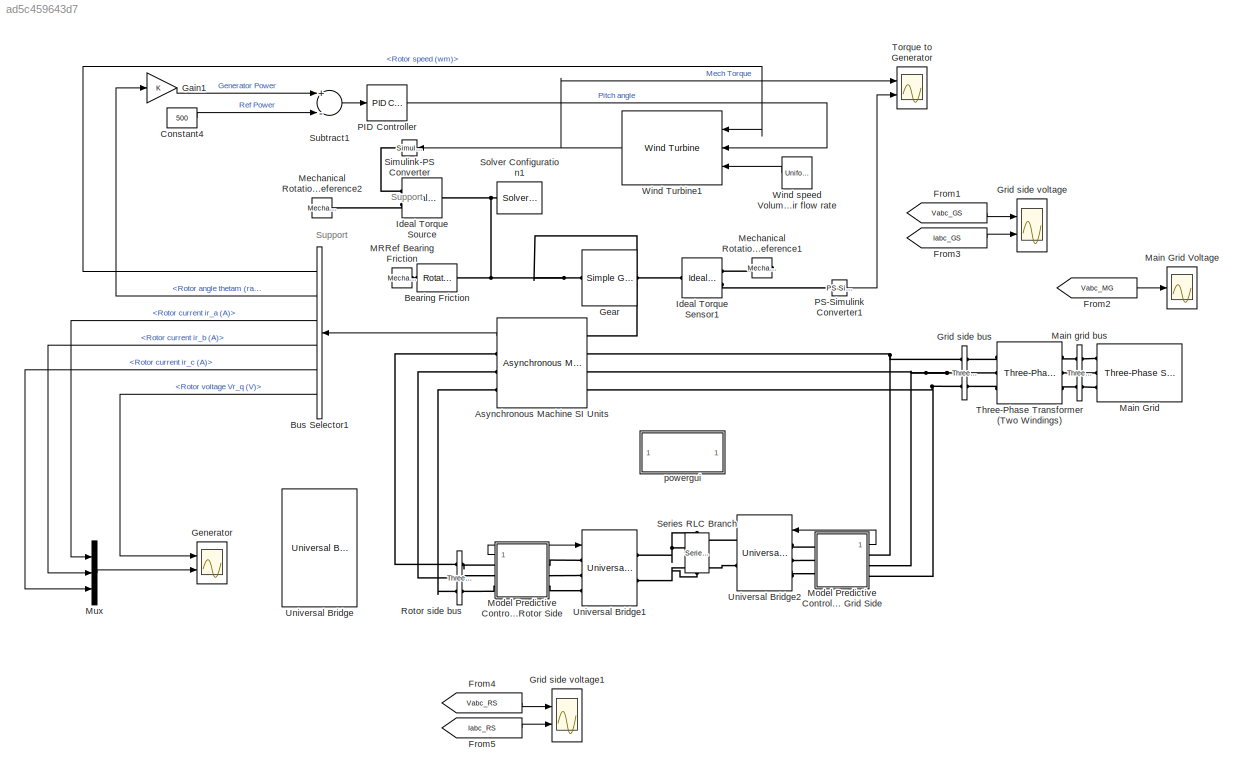
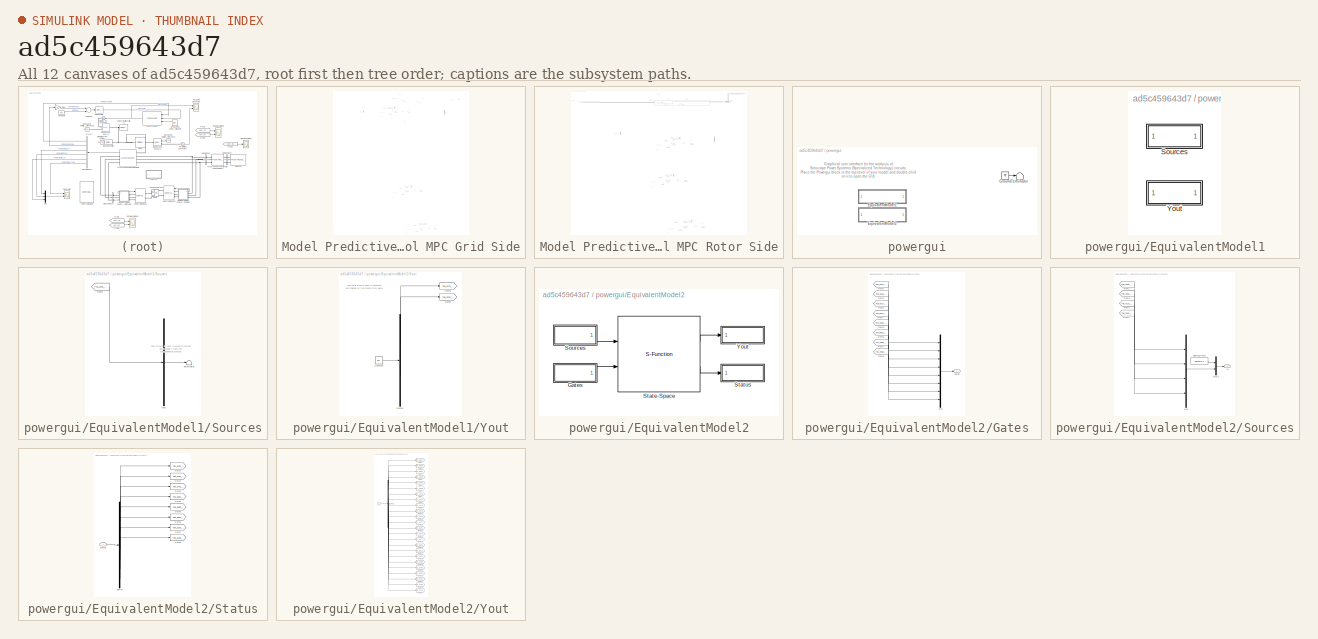
[diagram: thumbnail index - all 12 canvases of the model, root first then tree order]
MODEL slx_ad5c459643d7
KIND model
CONFIG AbsTol = auto
CONFIG EnableMultiTasking = off
CONFIG FixedStep = auto
CONFIG MaxStep = auto
CONFIG MinStep = auto
CONFIG RelTol = 1e-3
CONFIG SampleTimeConstraint = Unconstrained
CONFIG Solver = VariableStepAuto
CONFIG SolverName = VariableStepAuto
CONFIG StartTime = 0.0
CONFIG StopTime = 10.0
BLOCK [Reference] Asynchronous Machine SI Units  REF=powerlib/Machines/Asynchronous Machine
SI Units
  Ports = [0, 1, 0, 0, 0, 4, 3]
  SourceBlock = powerlib/Machines/Asynchronous Machine\nSI Units
  SourceProductBaseCode = PS
  SourceProductName = Simscape Power Systems
  SourceType = Asynchronous Machine
BLOCK [Reference] Bearing Friction  REF=fl_lib/Mechanical/Rotational Elements/Rotational Damper
  Ports = [0, 0, 0, 0, 0, 1, 1]
  SourceBlock = fl_lib/Mechanical/Rotational Elements/Rotational Damper
  SourceProductBaseCode = SS
  SourceProductName = Simscape
  SourceType = Rotational Damper
BLOCK [BusSelector] Bus Selector1
  OutputAsBus = off
  OutputSignals = Mechanical.Rotor speed (wm),Mechanical.Rotor angle thetam (rad),Rotor measurements.Rotor current ir_a (A),Rotor measurements.Rotor current ir_b (A),Rotor measurements.Rotor current ir_c (A),Rotor measurements.Rotor voltage Vr_q (V)
  Ports = [1, 6]
BLOCK [Constant] Constant4
  Value = 500
BLOCK [From] From1
  GotoTag = Vabc_GS
  TagVisibility = global
BLOCK [From] From2
  GotoTag = Vabc_MG
  TagVisibility = global
BLOCK [From] From3
  GotoTag = Iabc_GS
  TagVisibility = global
BLOCK [From] From4
  GotoTag = Vabc_RS
  TagVisibility = global
BLOCK [From] From5
  GotoTag = Iabc_RS
  TagVisibility = global
BLOCK [Gain] Gain1
  OutDataTypeStr = Inherit: Inherit via internal rule
  ParamDataTypeStr = Inherit: Inherit via internal rule
  SaturateOnIntegerOverflow = off
BLOCK [Reference] Gear  REF=sdl_lib/Gears/Simple Gear
  Ports = [0, 0, 0, 0, 0, 1, 1]
  SourceBlock = sdl_lib/Gears/Simple Gear
  SourceProductBaseCode = LD
  SourceProductName = Simscape Driveline
  SourceType = Simple Gear
BLOCK [Scope] Generator
  Floating = off
  NumInputPorts = 2
  Ports = [2]
  ScopeSpecificationString = Simulink.scopes.TimeScopeBlockCfg('CurrentConfiguration', extmgr.ConfigurationSet(extmgr.Configuration('Core','General UI',true),extmgr.Configuration('Core','Source UI',true),extmgr.Configuration('Sources','WiredSimulink',true,'DataLoggingLimitDataPoints',true,'DataLoggingSaveFormat','Array','DataLoggingDecimation','1','DataLoggingDecimateData',true,'DataLoggingVariableName','ScopeData4'),extmgr.C...<+2330ch>
BLOCK [Reference] Grid side bus  REF=powerlib/Measurements/Three-Phase
V-I Measurement
  Ports = [0, 0, 0, 0, 0, 3, 3]
  SourceBlock = powerlib/Measurements/Three-Phase\nV-I Measurement
  SourceProductBaseCode = PS
  SourceProductName = Simscape Power Systems
  SourceType = Three-Phase VI Measurement
BLOCK [Scope] Grid side voltage
  Floating = off
  NumInputPorts = 2
  Ports = [2]
  ScopeSpecificationString = Simulink.scopes.TimeScopeBlockCfg('CurrentConfiguration', extmgr.ConfigurationSet(extmgr.Configuration('Core','General UI',true),extmgr.Configuration('Core','Source UI',true),extmgr.Configuration('Sources','WiredSimulink',true,'DataLoggingLimitDataPoints',true,'DataLoggingSaveFormat','Array','DataLoggingDecimation','1','DataLoggingDecimateData',true),extmgr.Configuration('Visuals','Time Domain',tr...<+2272ch>
BLOCK [Scope] Grid side voltage1
  Floating = off
  NumInputPorts = 2
  Ports = [2]
  ScopeSpecificationString = Simulink.scopes.TimeScopeBlockCfg('CurrentConfiguration', extmgr.ConfigurationSet(extmgr.Configuration('Core','General UI',true),extmgr.Configuration('Core','Source UI',true),extmgr.Configuration('Sources','WiredSimulink',true,'DataLoggingLimitDataPoints',true,'DataLoggingSaveFormat','Array','DataLoggingDecimation','1','DataLoggingDecimateData',true,'DataLoggingVariableName','ScopeData2'),extmgr.C...<+2303ch>
BLOCK [Reference] Ideal Torque Sensor1  REF=fl_lib/Mechanical/Mechanical Sensors/Ideal Torque Sensor
  Ports = [0, 0, 0, 0, 0, 1, 2]
  SourceBlock = fl_lib/Mechanical/Mechanical Sensors/Ideal Torque Sensor
  SourceProductBaseCode = SS
  SourceProductName = Simscape
  SourceType = Ideal Torque Sensor
BLOCK [Reference] Ideal Torque Source  REF=fl_lib/Mechanical/Mechanical Sources/Ideal Torque Source
  Ports = [0, 0, 0, 0, 0, 1, 2]
  SourceBlock = fl_lib/Mechanical/Mechanical Sources/Ideal Torque Source
  SourceProductBaseCode = SS
  SourceProductName = Simscape
  SourceType = Ideal Torque Source
BLOCK [Reference] MRRef Bearing Friction  REF=fl_lib/Mechanical/Rotational Elements/Mechanical
Rotational Reference
  Ports = [0, 0, 0, 0, 0, 1]
  SourceBlock = fl_lib/Mechanical/Rotational Elements/Mechanical\nRotational Reference
  SourceProductBaseCode = SS
  SourceProductName = Simscape
  SourceType = Mechanical\nRotational Reference
BLOCK [Reference] Main Grid  REF=powerlib/Electrical
Sources/Three-Phase Source
  Ports = [0, 0, 0, 0, 0, 0, 3]
  SourceBlock = powerlib/Electrical\nSources/Three-Phase Source
  SourceProductBaseCode = PS
  SourceProductName = Simscape Power Systems
  SourceType = Three-Phase Source
BLOCK [Scope] Main Grid Voltage
  Floating = off
  NumInputPorts = 1
  Ports = [1]
  ScopeSpecificationString = Simulink.scopes.TimeScopeBlockCfg('CurrentConfiguration', extmgr.ConfigurationSet(extmgr.Configuration('Core','General UI',true),extmgr.Configuration('Core','Source UI',true),extmgr.Configuration('Sources','WiredSimulink',true,'DataLoggingLimitDataPoints',true,'DataLoggingSaveFormat','Array','DataLoggingDecimation','1','DataLoggingDecimateData',true,'DataLoggingVariableName','ScopeData5'),extmgr.C...<+1726ch>
BLOCK [Reference] Main grid bus  REF=powerlib/Measurements/Three-Phase
V-I Measurement
  Ports = [0, 0, 0, 0, 0, 3, 3]
  SourceBlock = powerlib/Measurements/Three-Phase\nV-I Measurement
  SourceProductBaseCode = PS
  SourceProductName = Simscape Power Systems
  SourceType = Three-Phase VI Measurement
BLOCK [Reference] Mechanical Rotational Reference1  REF=fl_lib/Mechanical/Rotational Elements/Mechanical
Rotational Reference
  Ports = [0, 0, 0, 0, 0, 1]
  SourceBlock = fl_lib/Mechanical/Rotational Elements/Mechanical\nRotational Reference
  SourceProductBaseCode = SS
  SourceProductName = Simscape
  SourceType = Mechanical\nRotational Reference
BLOCK [Reference] Mechanical Rotational Reference2  REF=fl_lib/Mechanical/Rotational Elements/Mechanical
Rotational Reference
  Ports = [0, 0, 0, 0, 0, 1]
  SourceBlock = fl_lib/Mechanical/Rotational Elements/Mechanical\nRotational Reference
  SourceProductBaseCode = SS
  SourceProductName = Simscape
  SourceType = Mechanical\nRotational Reference
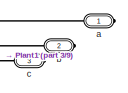
[diagram: Model Predictive Control MPC Grid Side - part 1/9, top right region]
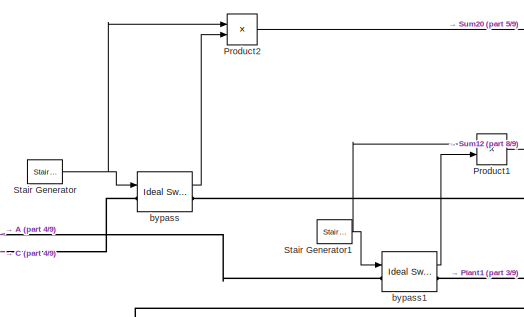
[diagram: Model Predictive Control MPC Grid Side - part 2/9, top center region]
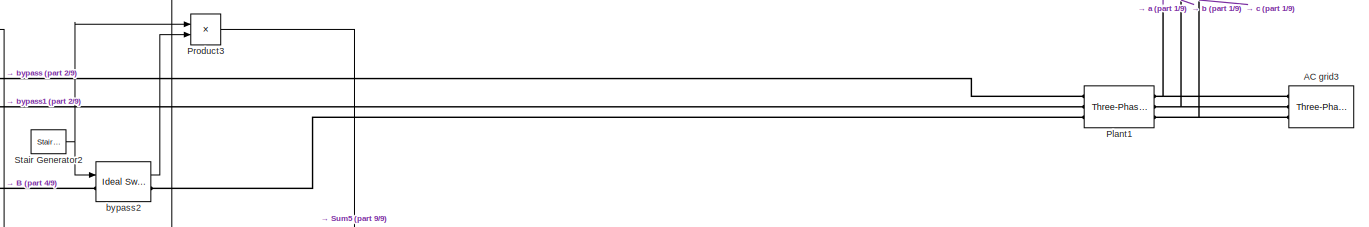
[diagram: Model Predictive Control MPC Grid Side - part 3/9, top right region]
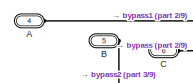
[diagram: Model Predictive Control MPC Grid Side - part 4/9, top left region]
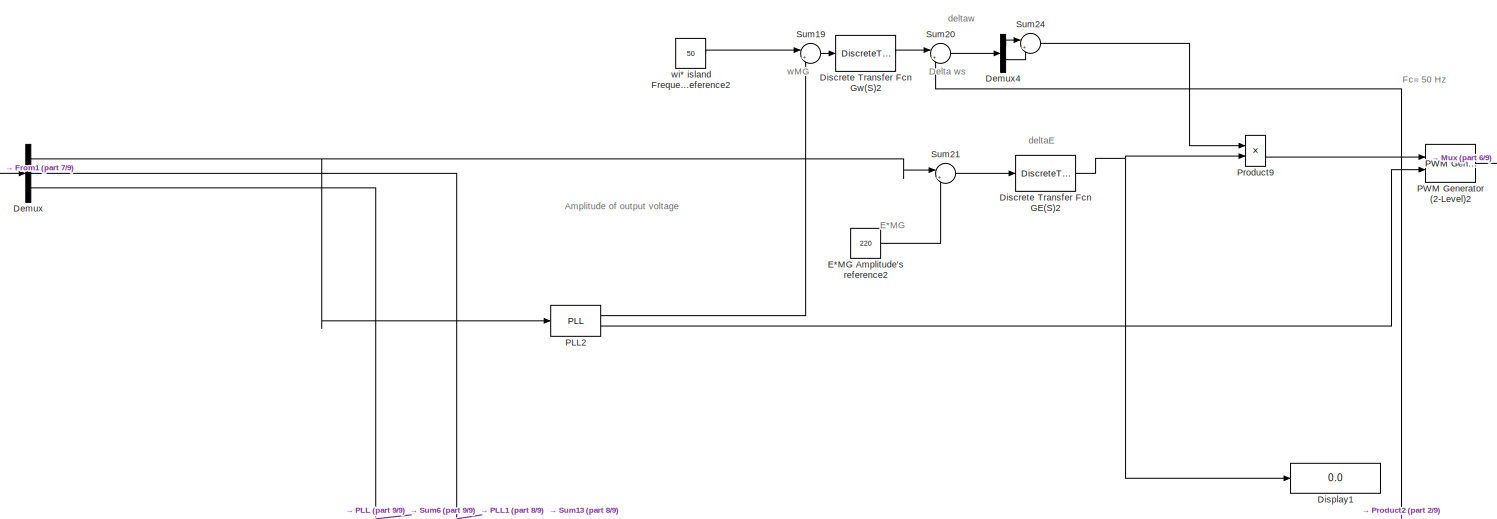
[diagram: Model Predictive Control MPC Grid Side - part 5/9, top center region]
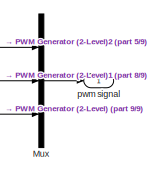
[diagram: Model Predictive Control MPC Grid Side - part 6/9, top right region]
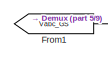
[diagram: Model Predictive Control MPC Grid Side - part 7/9, top left region]
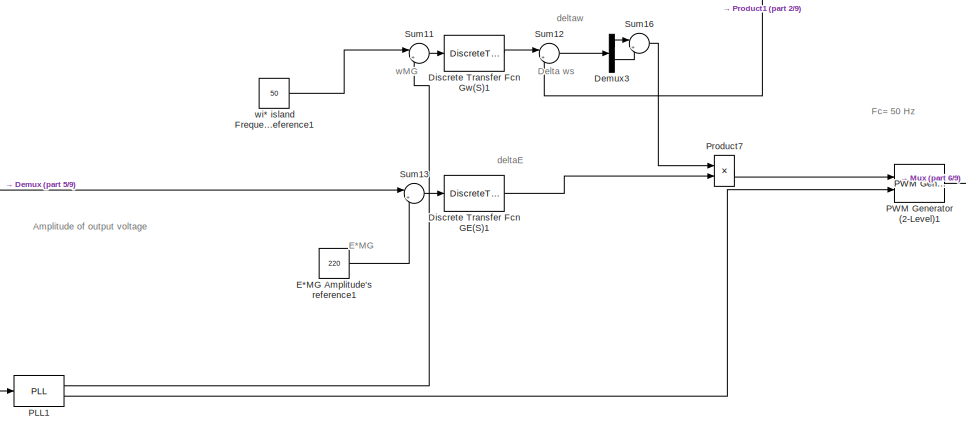
[diagram: Model Predictive Control MPC Grid Side - part 8/9, bottom center region]
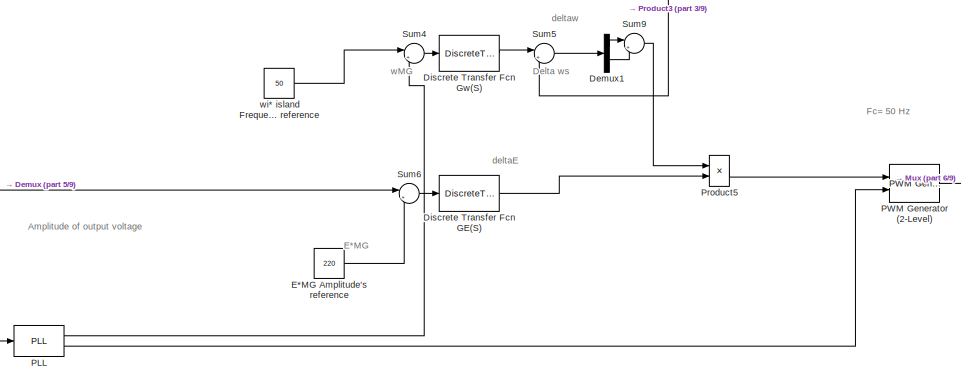
[diagram: Model Predictive Control MPC Grid Side - part 9/9, bottom center region]
BLOCK [SubSystem] Model Predictive Control MPC Grid Side
  Ports = [0, 1, 0, 0, 0, 3, 3]
  RequestExecContextInheritance = off
BLOCK [PMIOPort] Model Predictive Control MPC Grid Side/A
  Port = 4
  Side = Left
BLOCK [Reference] Model Predictive Control MPC Grid Side/AC grid3  REF=powerlib/Elements/Three-Phase
Series RLC Load
  AttributesFormatString = \n
  Ports = [0, 0, 0, 0, 0, 3]
  SourceBlock = powerlib/Elements/Three-Phase\nSeries RLC Load
  SourceProductBaseCode = PS
  SourceProductName = Simscape Power Systems
  SourceType = Three-Phase Series RLC Load
BLOCK [PMIOPort] Model Predictive Control MPC Grid Side/B
  Port = 5
  Side = Left
BLOCK [PMIOPort] Model Predictive Control MPC Grid Side/C
  Port = 6
  Side = Left
BLOCK [Demux] Model Predictive Control MPC Grid Side/Demux
  DisplayOption = bar
  Outputs = 3
  Ports = [1, 3]
BLOCK [Demux] Model Predictive Control MPC Grid Side/Demux1
  DisplayOption = bar
  Outputs = 2
  Ports = [1, 2]
BLOCK [Demux] Model Predictive Control MPC Grid Side/Demux3
  DisplayOption = bar
  Outputs = 2
  Ports = [1, 2]
BLOCK [Demux] Model Predictive Control MPC Grid Side/Demux4
  DisplayOption = bar
  Outputs = 2
  Ports = [1, 2]
BLOCK [DiscreteTransferFcn] Model Predictive Control MPC Grid Side/Discrete Transfer Fcn GE(S)
  InputPortMap = u0
  Ports = [1, 1]
  SampleTime = 2e-6
BLOCK [DiscreteTransferFcn] Model Predictive Control MPC Grid Side/Discrete Transfer Fcn GE(S)1
  InputPortMap = u0
  Ports = [1, 1]
  SampleTime = 2e-6
BLOCK [DiscreteTransferFcn] Model Predictive Control MPC Grid Side/Discrete Transfer Fcn GE(S)2
  InputPortMap = u0
  Ports = [1, 1]
  SampleTime = 2e-6
BLOCK [DiscreteTransferFcn] Model Predictive Control MPC Grid Side/Discrete Transfer Fcn Gw(S)
  InputPortMap = u0
  Ports = [1, 1]
  SampleTime = 2e-6
BLOCK [DiscreteTransferFcn] Model Predictive Control MPC Grid Side/Discrete Transfer Fcn Gw(S)1
  InputPortMap = u0
  Ports = [1, 1]
  SampleTime = 2e-6
BLOCK [DiscreteTransferFcn] Model Predictive Control MPC Grid Side/Discrete Transfer Fcn Gw(S)2
  InputPortMap = u0
  Ports = [1, 1]
  SampleTime = 2e-6
BLOCK [Display] Model Predictive Control MPC Grid Side/Display1
  Decimation = 1
  Ports = [1]
BLOCK [Constant] Model Predictive Control MPC Grid Side/E*MG Amplitude's reference
  Value = 220
BLOCK [Constant] Model Predictive Control MPC Grid Side/E*MG Amplitude's reference1
  Value = 220
BLOCK [Constant] Model Predictive Control MPC Grid Side/E*MG Amplitude's reference2
  Value = 220
BLOCK [From] Model Predictive Control MPC Grid Side/From1
  GotoTag = Vabc_GS
  TagVisibility = global
BLOCK [Mux] Model Predictive Control MPC Grid Side/Mux
  DisplayOption = bar
  Inputs = 3
  Ports = [3, 1]
BLOCK [Reference] Model Predictive Control MPC Grid Side/PLL  REF=powerlib_meascontrol/PLL/PLL
  Ports = [1, 2]
  SourceBlock = powerlib_meascontrol/PLL/PLL
  SourceProductBaseCode = PS
  SourceProductName = Simscape Power Systems
  SourceType = PLL
BLOCK [Reference] Model Predictive Control MPC Grid Side/PLL1  REF=powerlib_meascontrol/PLL/PLL
  Ports = [1, 2]
  SourceBlock = powerlib_meascontrol/PLL/PLL
  SourceProductBaseCode = PS
  SourceProductName = Simscape Power Systems
  SourceType = PLL
BLOCK [Reference] Model Predictive Control MPC Grid Side/PLL2  REF=powerlib_meascontrol/PLL/PLL
  Ports = [1, 2]
  SourceBlock = powerlib_meascontrol/PLL/PLL
  SourceProductBaseCode = PS
  SourceProductName = Simscape Power Systems
  SourceType = PLL
BLOCK [Reference] Model Predictive Control MPC Grid Side/PWM Generator (2-Level)  REF=powerlib_meascontrol/Pulse & Signal
Generators/PWM Generator
(2-Level)
  Ports = [2, 1]
  SourceBlock = powerlib_meascontrol/Pulse & Signal\nGenerators/PWM Generator\n(2-Level)
  SourceProductBaseCode = PS
  SourceProductName = Simscape Power Systems
  SourceType = PWM Generator (2-Level)
BLOCK [Reference] Model Predictive Control MPC Grid Side/PWM Generator (2-Level)1  REF=powerlib_meascontrol/Pulse & Signal
Generators/PWM Generator
(2-Level)
  Ports = [2, 1]
  SourceBlock = powerlib_meascontrol/Pulse & Signal\nGenerators/PWM Generator\n(2-Level)
  SourceProductBaseCode = PS
  SourceProductName = Simscape Power Systems
  SourceType = PWM Generator (2-Level)
BLOCK [Reference] Model Predictive Control MPC Grid Side/PWM Generator (2-Level)2  REF=powerlib_meascontrol/Pulse & Signal
Generators/PWM Generator
(2-Level)
  Ports = [2, 1]
  SourceBlock = powerlib_meascontrol/Pulse & Signal\nGenerators/PWM Generator\n(2-Level)
  SourceProductBaseCode = PS
  SourceProductName = Simscape Power Systems
  SourceType = PWM Generator (2-Level)
BLOCK [Reference] Model Predictive Control MPC Grid Side/Plant1  REF=powerlib/Elements/Three-Phase
Series RLC Branch
  AttributesFormatString = \n
  Ports = [0, 0, 0, 0, 0, 3, 3]
  SourceBlock = powerlib/Elements/Three-Phase\nSeries RLC Branch
  SourceProductBaseCode = PS
  SourceProductName = Simscape Power Systems
  SourceType = Three-Phase Series RLC Branch
BLOCK [Product] Model Predictive Control MPC Grid Side/Product1
  InputSameDT = off
  OutDataTypeStr = Inherit: Inherit via internal rule
  Ports = [2, 1]
  RndMeth = Floor
  SaturateOnIntegerOverflow = off
BLOCK [Product] Model Predictive Control MPC Grid Side/Product2
  InputSameDT = off
  OutDataTypeStr = Inherit: Inherit via internal rule
  Ports = [2, 1]
  RndMeth = Floor
  SaturateOnIntegerOverflow = off
BLOCK [Product] Model Predictive Control MPC Grid Side/Product3
  InputSameDT = off
  OutDataTypeStr = Inherit: Inherit via internal rule
  Ports = [2, 1]
  RndMeth = Floor
  SaturateOnIntegerOverflow = off
BLOCK [Product] Model Predictive Control MPC Grid Side/Product5
  InputSameDT = off
  OutDataTypeStr = Inherit: Inherit via internal rule
  Ports = [2, 1]
  SampleTime = 0
  SaturateOnIntegerOverflow = off
BLOCK [Product] Model Predictive Control MPC Grid Side/Product7
  InputSameDT = off
  OutDataTypeStr = Inherit: Inherit via internal rule
  Ports = [2, 1]
  SampleTime = 0
  SaturateOnIntegerOverflow = off
BLOCK [Product] Model Predictive Control MPC Grid Side/Product9
  InputSameDT = off
  OutDataTypeStr = Inherit: Inherit via internal rule
  Ports = [2, 1]
  SampleTime = 0
  SaturateOnIntegerOverflow = off
BLOCK [Reference] Model Predictive Control MPC Grid Side/Stair Generator  REF=powerlib_meascontrol/Pulse & Signal
Generators/Stair
Generator
  Ports = [0, 1]
  SourceBlock = powerlib_meascontrol/Pulse & Signal\nGenerators/Stair\nGenerator
  SourceProductBaseCode = PS
  SourceProductName = Simscape Power Systems
  SourceType = Stair Generator
BLOCK [Reference] Model Predictive Control MPC Grid Side/Stair Generator1  REF=powerlib_meascontrol/Pulse & Signal
Generators/Stair
Generator
  Ports = [0, 1]
  SourceBlock = powerlib_meascontrol/Pulse & Signal\nGenerators/Stair\nGenerator
  SourceProductBaseCode = PS
  SourceProductName = Simscape Power Systems
  SourceType = Stair Generator
BLOCK [Reference] Model Predictive Control MPC Grid Side/Stair Generator2  REF=powerlib_meascontrol/Pulse & Signal
Generators/Stair
Generator
  Ports = [0, 1]
  SourceBlock = powerlib_meascontrol/Pulse & Signal\nGenerators/Stair\nGenerator
  SourceProductBaseCode = PS
  SourceProductName = Simscape Power Systems
  SourceType = Stair Generator
BLOCK [Sum] Model Predictive Control MPC Grid Side/Sum11
  IconShape = round
  InputSameDT = off
  Inputs = |+-
  OutDataTypeStr = Inherit: Inherit via internal rule
  Ports = [2, 1]
  SaturateOnIntegerOverflow = off
BLOCK [Sum] Model Predictive Control MPC Grid Side/Sum12
  IconShape = round
  InputSameDT = off
  Inputs = |+-
  OutDataTypeStr = Inherit: Inherit via internal rule
  Ports = [2, 1]
  SaturateOnIntegerOverflow = off
BLOCK [Sum] Model Predictive Control MPC Grid Side/Sum13
  IconShape = round
  InputSameDT = off
  Inputs = |+-
  OutDataTypeStr = Inherit: Inherit via internal rule
  Ports = [2, 1]
  SaturateOnIntegerOverflow = off
BLOCK [Sum] Model Predictive Control MPC Grid Side/Sum16
  IconShape = round
  InputSameDT = off
  Inputs = |+-
  OutDataTypeStr = Inherit: Inherit via internal rule
  Ports = [2, 1]
  SaturateOnIntegerOverflow = off
BLOCK [Sum] Model Predictive Control MPC Grid Side/Sum19
  IconShape = round
  InputSameDT = off
  Inputs = |+-
  OutDataTypeStr = Inherit: Inherit via internal rule
  Ports = [2, 1]
  SaturateOnIntegerOverflow = off
BLOCK [Sum] Model Predictive Control MPC Grid Side/Sum20
  IconShape = round
  InputSameDT = off
  Inputs = |+-
  OutDataTypeStr = Inherit: Inherit via internal rule
  Ports = [2, 1]
  SaturateOnIntegerOverflow = off
BLOCK [Sum] Model Predictive Control MPC Grid Side/Sum21
  IconShape = round
  InputSameDT = off
  Inputs = |+-
  OutDataTypeStr = Inherit: Inherit via internal rule
  Ports = [2, 1]
  SaturateOnIntegerOverflow = off
BLOCK [Sum] Model Predictive Control MPC Grid Side/Sum24
  IconShape = round
  InputSameDT = off
  Inputs = |+-
  OutDataTypeStr = Inherit: Inherit via internal rule
  Ports = [2, 1]
  SaturateOnIntegerOverflow = off
BLOCK [Sum] Model Predictive Control MPC Grid Side/Sum4
  IconShape = round
  InputSameDT = off
  Inputs = |+-
  OutDataTypeStr = Inherit: Inherit via internal rule
  Ports = [2, 1]
  SaturateOnIntegerOverflow = off
BLOCK [Sum] Model Predictive Control MPC Grid Side/Sum5
  IconShape = round
  InputSameDT = off
  Inputs = |+-
  OutDataTypeStr = Inherit: Inherit via internal rule
  Ports = [2, 1]
  SaturateOnIntegerOverflow = off
BLOCK [Sum] Model Predictive Control MPC Grid Side/Sum6
  IconShape = round
  InputSameDT = off
  Inputs = |+-
  OutDataTypeStr = Inherit: Inherit via internal rule
  Ports = [2, 1]
  SaturateOnIntegerOverflow = off
BLOCK [Sum] Model Predictive Control MPC Grid Side/Sum9
  IconShape = round
  InputSameDT = off
  Inputs = |+-
  OutDataTypeStr = Inherit: Inherit via internal rule
  Ports = [2, 1]
  SaturateOnIntegerOverflow = off
BLOCK [PMIOPort] Model Predictive Control MPC Grid Side/a
  Side = Right
BLOCK [PMIOPort] Model Predictive Control MPC Grid Side/b
  Port = 2
  Side = Right
BLOCK [Reference] Model Predictive Control MPC Grid Side/bypass  REF=powerlib/Power
Electronics/Ideal Switch
  Ports = [1, 1, 0, 0, 0, 1, 1]
  SourceBlock = powerlib/Power\nElectronics/Ideal Switch
  SourceProductBaseCode = PS
  SourceProductName = Simscape Power Systems
  SourceType = Ideal Switch
BLOCK [Reference] Model Predictive Control MPC Grid Side/bypass1  REF=powerlib/Power
Electronics/Ideal Switch
  Ports = [1, 1, 0, 0, 0, 1, 1]
  SourceBlock = powerlib/Power\nElectronics/Ideal Switch
  SourceProductBaseCode = PS
  SourceProductName = Simscape Power Systems
  SourceType = Ideal Switch
BLOCK [Reference] Model Predictive Control MPC Grid Side/bypass2  REF=powerlib/Power
Electronics/Ideal Switch
  Ports = [1, 1, 0, 0, 0, 1, 1]
  SourceBlock = powerlib/Power\nElectronics/Ideal Switch
  SourceProductBaseCode = PS
  SourceProductName = Simscape Power Systems
  SourceType = Ideal Switch
BLOCK [PMIOPort] Model Predictive Control MPC Grid Side/c
  Port = 3
  Side = Right
BLOCK [Outport] Model Predictive Control MPC Grid Side/pwm signal
  IconDisplay = Port number
BLOCK [Constant] Model Predictive Control MPC Grid Side/wi* island Frequency's reference
  Value = 50
BLOCK [Constant] Model Predictive Control MPC Grid Side/wi* island Frequency's reference1
  Value = 50
BLOCK [Constant] Model Predictive Control MPC Grid Side/wi* island Frequency's reference2
  Value = 50
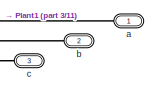
[diagram: Model Predictive Control MPC Rotor Side - part 1/11, top right region]
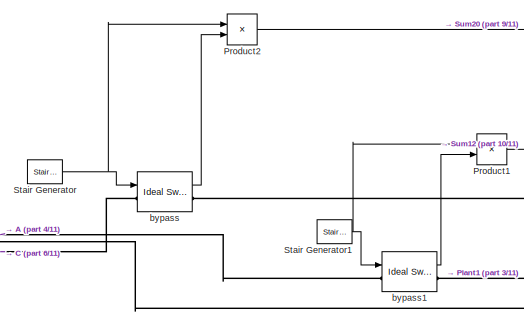
[diagram: Model Predictive Control MPC Rotor Side - part 2/11, top center region]
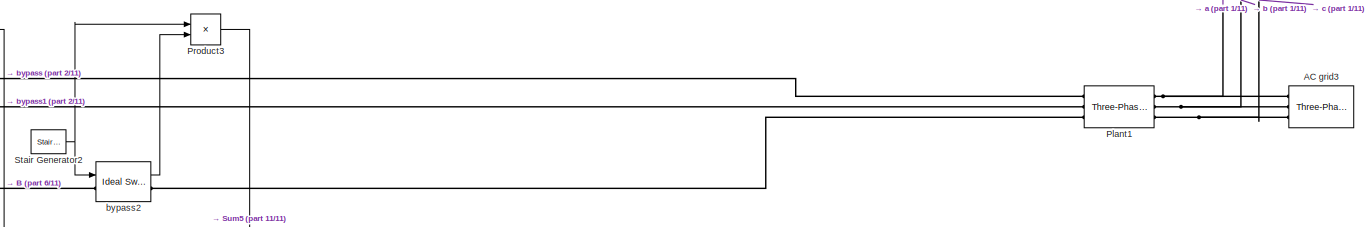
[diagram: Model Predictive Control MPC Rotor Side - part 3/11, top right region]
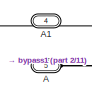
[diagram: Model Predictive Control MPC Rotor Side - part 4/11, top left region]
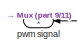
[diagram: Model Predictive Control MPC Rotor Side - part 5/11, top left region]
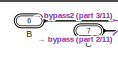
[diagram: Model Predictive Control MPC Rotor Side - part 6/11, top left region]
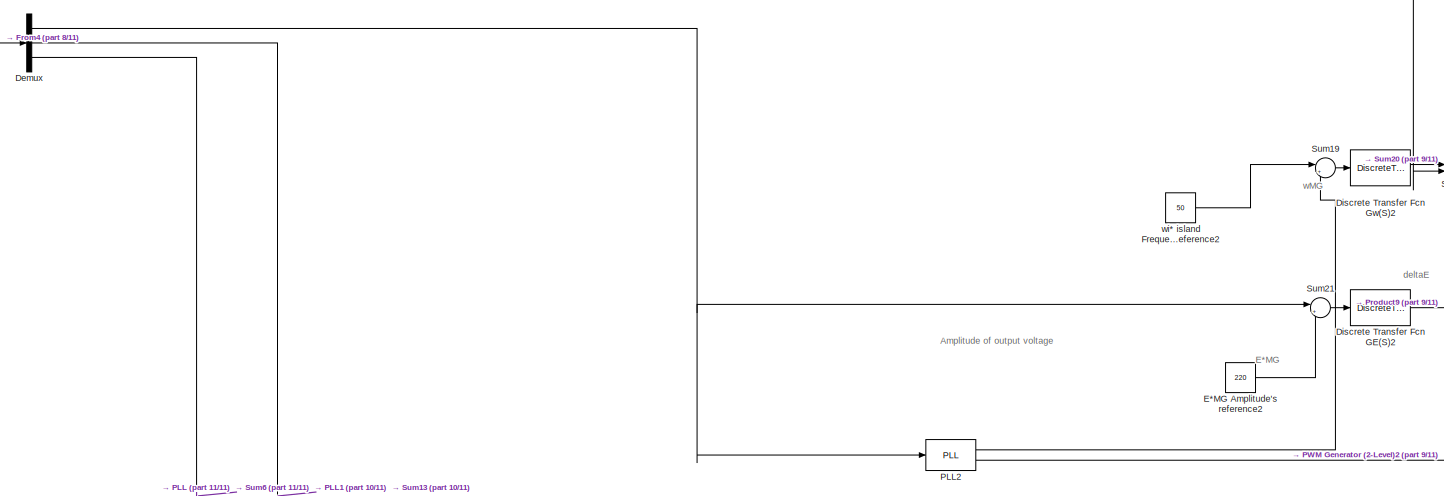
[diagram: Model Predictive Control MPC Rotor Side - part 7/11, central region]
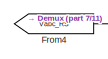
[diagram: Model Predictive Control MPC Rotor Side - part 8/11, top left region]
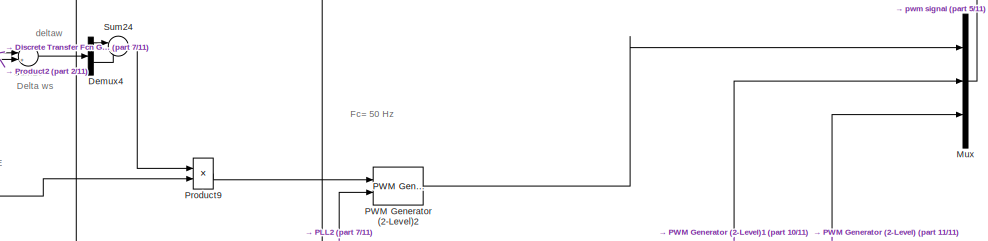
[diagram: Model Predictive Control MPC Rotor Side - part 9/11, middle right region]
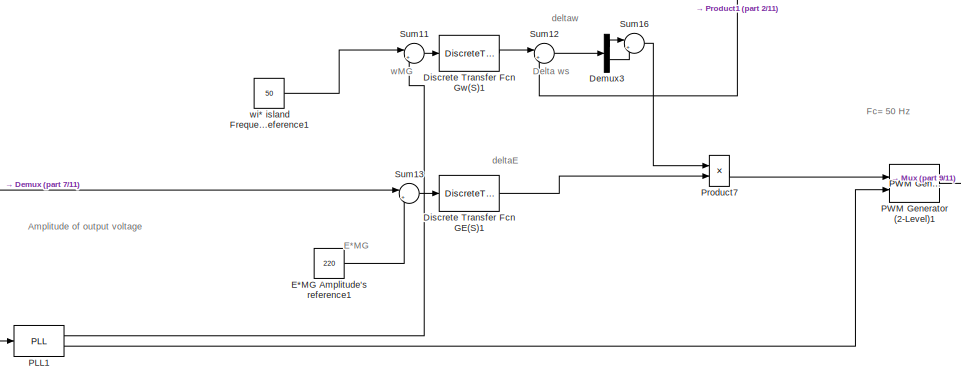
[diagram: Model Predictive Control MPC Rotor Side - part 10/11, central region]
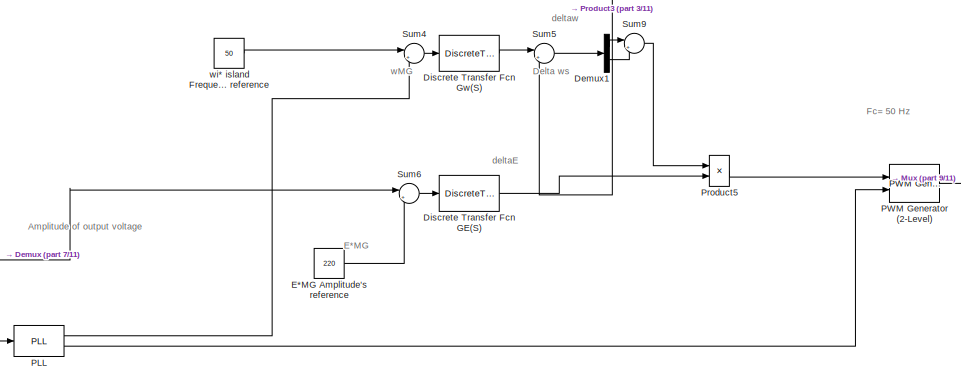
[diagram: Model Predictive Control MPC Rotor Side - part 11/11, bottom center region]
BLOCK [SubSystem] Model Predictive Control MPC Rotor Side
  Ports = [0, 1, 0, 0, 0, 4, 3]
  RequestExecContextInheritance = off
BLOCK [PMIOPort] Model Predictive Control MPC Rotor Side/A
  Port = 5
  Side = Left
BLOCK [PMIOPort] Model Predictive Control MPC Rotor Side/A1
  Port = 4
  Side = Left
BLOCK [Reference] Model Predictive Control MPC Rotor Side/AC grid3  REF=powerlib/Elements/Three-Phase
Series RLC Load
  AttributesFormatString = \n
  Ports = [0, 0, 0, 0, 0, 3]
  SourceBlock = powerlib/Elements/Three-Phase\nSeries RLC Load
  SourceProductBaseCode = PS
  SourceProductName = Simscape Power Systems
  SourceType = Three-Phase Series RLC Load
BLOCK [PMIOPort] Model Predictive Control MPC Rotor Side/B
  Port = 6
  Side = Left
BLOCK [PMIOPort] Model Predictive Control MPC Rotor Side/C
  Port = 7
  Side = Left
BLOCK [Demux] Model Predictive Control MPC Rotor Side/Demux
  DisplayOption = bar
  Outputs = 3
  Ports = [1, 3]
BLOCK [Demux] Model Predictive Control MPC Rotor Side/Demux1
  DisplayOption = bar
  Outputs = 2
  Ports = [1, 2]
BLOCK [Demux] Model Predictive Control MPC Rotor Side/Demux3
  DisplayOption = bar
  Outputs = 2
  Ports = [1, 2]
BLOCK [Demux] Model Predictive Control MPC Rotor Side/Demux4
  DisplayOption = bar
  Outputs = 2
  Ports = [1, 2]
BLOCK [DiscreteTransferFcn] Model Predictive Control MPC Rotor Side/Discrete Transfer Fcn GE(S)
  InputPortMap = u0
  Ports = [1, 1]
  SampleTime = 2e-6
BLOCK [DiscreteTransferFcn] Model Predictive Control MPC Rotor Side/Discrete Transfer Fcn GE(S)1
  InputPortMap = u0
  Ports = [1, 1]
  SampleTime = 2e-6
BLOCK [DiscreteTransferFcn] Model Predictive Control MPC Rotor Side/Discrete Transfer Fcn GE(S)2
  InputPortMap = u0
  Ports = [1, 1]
  SampleTime = 2e-6
BLOCK [DiscreteTransferFcn] Model Predictive Control MPC Rotor Side/Discrete Transfer Fcn Gw(S)
  InputPortMap = u0
  Ports = [1, 1]
  SampleTime = 2e-6
BLOCK [DiscreteTransferFcn] Model Predictive Control MPC Rotor Side/Discrete Transfer Fcn Gw(S)1
  InputPortMap = u0
  Ports = [1, 1]
  SampleTime = 2e-6
BLOCK [DiscreteTransferFcn] Model Predictive Control MPC Rotor Side/Discrete Transfer Fcn Gw(S)2
  InputPortMap = u0
  Ports = [1, 1]
  SampleTime = 2e-6
BLOCK [Constant] Model Predictive Control MPC Rotor Side/E*MG Amplitude's reference
  Value = 220
BLOCK [Constant] Model Predictive Control MPC Rotor Side/E*MG Amplitude's reference1
  Value = 220
BLOCK [Constant] Model Predictive Control MPC Rotor Side/E*MG Amplitude's reference2
  Value = 220
BLOCK [From] Model Predictive Control MPC Rotor Side/From4
  GotoTag = Vabc_RS
  TagVisibility = global
BLOCK [Mux] Model Predictive Control MPC Rotor Side/Mux
  DisplayOption = bar
  Inputs = 3
  Ports = [3, 1]
BLOCK [Reference] Model Predictive Control MPC Rotor Side/PLL  REF=powerlib_meascontrol/PLL/PLL
  Ports = [1, 2]
  SourceBlock = powerlib_meascontrol/PLL/PLL
  SourceProductBaseCode = PS
  SourceProductName = Simscape Power Systems
  SourceType = PLL
BLOCK [Reference] Model Predictive Control MPC Rotor Side/PLL1  REF=powerlib_meascontrol/PLL/PLL
  Ports = [1, 2]
  SourceBlock = powerlib_meascontrol/PLL/PLL
  SourceProductBaseCode = PS
  SourceProductName = Simscape Power Systems
  SourceType = PLL
BLOCK [Reference] Model Predictive Control MPC Rotor Side/PLL2  REF=powerlib_meascontrol/PLL/PLL
  Ports = [1, 2]
  SourceBlock = powerlib_meascontrol/PLL/PLL
  SourceProductBaseCode = PS
  SourceProductName = Simscape Power Systems
  SourceType = PLL
BLOCK [Reference] Model Predictive Control MPC Rotor Side/PWM Generator (2-Level)  REF=powerlib_meascontrol/Pulse & Signal
Generators/PWM Generator
(2-Level)
  Ports = [2, 1]
  SourceBlock = powerlib_meascontrol/Pulse & Signal\nGenerators/PWM Generator\n(2-Level)
  SourceProductBaseCode = PS
  SourceProductName = Simscape Power Systems
  SourceType = PWM Generator (2-Level)
BLOCK [Reference] Model Predictive Control MPC Rotor Side/PWM Generator (2-Level)1  REF=powerlib_meascontrol/Pulse & Signal
Generators/PWM Generator
(2-Level)
  Ports = [2, 1]
  SourceBlock = powerlib_meascontrol/Pulse & Signal\nGenerators/PWM Generator\n(2-Level)
  SourceProductBaseCode = PS
  SourceProductName = Simscape Power Systems
  SourceType = PWM Generator (2-Level)
BLOCK [Reference] Model Predictive Control MPC Rotor Side/PWM Generator (2-Level)2  REF=powerlib_meascontrol/Pulse & Signal
Generators/PWM Generator
(2-Level)
  Ports = [2, 1]
  SourceBlock = powerlib_meascontrol/Pulse & Signal\nGenerators/PWM Generator\n(2-Level)
  SourceProductBaseCode = PS
  SourceProductName = Simscape Power Systems
  SourceType = PWM Generator (2-Level)
BLOCK [Reference] Model Predictive Control MPC Rotor Side/Plant1  REF=powerlib/Elements/Three-Phase
Series RLC Branch
  AttributesFormatString = \n
  Ports = [0, 0, 0, 0, 0, 3, 3]
  SourceBlock = powerlib/Elements/Three-Phase\nSeries RLC Branch
  SourceProductBaseCode = PS
  SourceProductName = Simscape Power Systems
  SourceType = Three-Phase Series RLC Branch
BLOCK [Product] Model Predictive Control MPC Rotor Side/Product1
  InputSameDT = off
  OutDataTypeStr = Inherit: Inherit via internal rule
  Ports = [2, 1]
  RndMeth = Floor
  SaturateOnIntegerOverflow = off
BLOCK [Product] Model Predictive Control MPC Rotor Side/Product2
  InputSameDT = off
  OutDataTypeStr = Inherit: Inherit via internal rule
  Ports = [2, 1]
  RndMeth = Floor
  SaturateOnIntegerOverflow = off
BLOCK [Product] Model Predictive Control MPC Rotor Side/Product3
  InputSameDT = off
  OutDataTypeStr = Inherit: Inherit via internal rule
  Ports = [2, 1]
  RndMeth = Floor
  SaturateOnIntegerOverflow = off
BLOCK [Product] Model Predictive Control MPC Rotor Side/Product5
  InputSameDT = off
  OutDataTypeStr = Inherit: Inherit via internal rule
  Ports = [2, 1]
  SampleTime = 0
  SaturateOnIntegerOverflow = off
BLOCK [Product] Model Predictive Control MPC Rotor Side/Product7
  InputSameDT = off
  OutDataTypeStr = Inherit: Inherit via internal rule
  Ports = [2, 1]
  SampleTime = 0
  SaturateOnIntegerOverflow = off
BLOCK [Product] Model Predictive Control MPC Rotor Side/Product9
  InputSameDT = off
  OutDataTypeStr = Inherit: Inherit via internal rule
  Ports = [2, 1]
  SampleTime = 0
  SaturateOnIntegerOverflow = off
BLOCK [Reference] Model Predictive Control MPC Rotor Side/Stair Generator  REF=powerlib_meascontrol/Pulse & Signal
Generators/Stair
Generator
  Ports = [0, 1]
  SourceBlock = powerlib_meascontrol/Pulse & Signal\nGenerators/Stair\nGenerator
  SourceProductBaseCode = PS
  SourceProductName = Simscape Power Systems
  SourceType = Stair Generator
BLOCK [Reference] Model Predictive Control MPC Rotor Side/Stair Generator1  REF=powerlib_meascontrol/Pulse & Signal
Generators/Stair
Generator
  Ports = [0, 1]
  SourceBlock = powerlib_meascontrol/Pulse & Signal\nGenerators/Stair\nGenerator
  SourceProductBaseCode = PS
  SourceProductName = Simscape Power Systems
  SourceType = Stair Generator
BLOCK [Reference] Model Predictive Control MPC Rotor Side/Stair Generator2  REF=powerlib_meascontrol/Pulse & Signal
Generators/Stair
Generator
  Ports = [0, 1]
  SourceBlock = powerlib_meascontrol/Pulse & Signal\nGenerators/Stair\nGenerator
  SourceProductBaseCode = PS
  SourceProductName = Simscape Power Systems
  SourceType = Stair Generator
BLOCK [Sum] Model Predictive Control MPC Rotor Side/Sum11
  IconShape = round
  InputSameDT = off
  Inputs = |+-
  OutDataTypeStr = Inherit: Inherit via internal rule
  Ports = [2, 1]
  SaturateOnIntegerOverflow = off
BLOCK [Sum] Model Predictive Control MPC Rotor Side/Sum12
  IconShape = round
  InputSameDT = off
  Inputs = |+-
  OutDataTypeStr = Inherit: Inherit via internal rule
  Ports = [2, 1]
  SaturateOnIntegerOverflow = off
BLOCK [Sum] Model Predictive Control MPC Rotor Side/Sum13
  IconShape = round
  InputSameDT = off
  Inputs = |+-
  OutDataTypeStr = Inherit: Inherit via internal rule
  Ports = [2, 1]
  SaturateOnIntegerOverflow = off
BLOCK [Sum] Model Predictive Control MPC Rotor Side/Sum16
  IconShape = round
  InputSameDT = off
  Inputs = |+-
  OutDataTypeStr = Inherit: Inherit via internal rule
  Ports = [2, 1]
  SaturateOnIntegerOverflow = off
BLOCK [Sum] Model Predictive Control MPC Rotor Side/Sum19
  IconShape = round
  InputSameDT = off
  Inputs = |+-
  OutDataTypeStr = Inherit: Inherit via internal rule
  Ports = [2, 1]
  SaturateOnIntegerOverflow = off
BLOCK [Sum] Model Predictive Control MPC Rotor Side/Sum20
  IconShape = round
  InputSameDT = off
  Inputs = |+-
  OutDataTypeStr = Inherit: Inherit via internal rule
  Ports = [2, 1]
  SaturateOnIntegerOverflow = off
BLOCK [Sum] Model Predictive Control MPC Rotor Side/Sum21
  IconShape = round
  InputSameDT = off
  Inputs = |+-
  OutDataTypeStr = Inherit: Inherit via internal rule
  Ports = [2, 1]
  SaturateOnIntegerOverflow = off
BLOCK [Sum] Model Predictive Control MPC Rotor Side/Sum24
  IconShape = round
  InputSameDT = off
  Inputs = |+-
  OutDataTypeStr = Inherit: Inherit via internal rule
  Ports = [2, 1]
  SaturateOnIntegerOverflow = off
BLOCK [Sum] Model Predictive Control MPC Rotor Side/Sum4
  IconShape = round
  InputSameDT = off
  Inputs = |+-
  OutDataTypeStr = Inherit: Inherit via internal rule
  Ports = [2, 1]
  SaturateOnIntegerOverflow = off
BLOCK [Sum] Model Predictive Control MPC Rotor Side/Sum5
  IconShape = round
  InputSameDT = off
  Inputs = |+-
  OutDataTypeStr = Inherit: Inherit via internal rule
  Ports = [2, 1]
  SaturateOnIntegerOverflow = off
BLOCK [Sum] Model Predictive Control MPC Rotor Side/Sum6
  IconShape = round
  InputSameDT = off
  Inputs = |+-
  OutDataTypeStr = Inherit: Inherit via internal rule
  Ports = [2, 1]
  SaturateOnIntegerOverflow = off
BLOCK [Sum] Model Predictive Control MPC Rotor Side/Sum9
  IconShape = round
  InputSameDT = off
  Inputs = |+-
  OutDataTypeStr = Inherit: Inherit via internal rule
  Ports = [2, 1]
  SaturateOnIntegerOverflow = off
BLOCK [PMIOPort] Model Predictive Control MPC Rotor Side/a
  Side = Right
BLOCK [PMIOPort] Model Predictive Control MPC Rotor Side/b
  Port = 2
  Side = Right
BLOCK [Reference] Model Predictive Control MPC Rotor Side/bypass  REF=powerlib/Power
Electronics/Ideal Switch
  Ports = [1, 1, 0, 0, 0, 1, 1]
  SourceBlock = powerlib/Power\nElectronics/Ideal Switch
  SourceProductBaseCode = PS
  SourceProductName = Simscape Power Systems
  SourceType = Ideal Switch
BLOCK [Reference] Model Predictive Control MPC Rotor Side/bypass1  REF=powerlib/Power
Electronics/Ideal Switch
  Ports = [1, 1, 0, 0, 0, 1, 1]
  SourceBlock = powerlib/Power\nElectronics/Ideal Switch
  SourceProductBaseCode = PS
  SourceProductName = Simscape Power Systems
  SourceType = Ideal Switch
BLOCK [Reference] Model Predictive Control MPC Rotor Side/bypass2  REF=powerlib/Power
Electronics/Ideal Switch
  Ports = [1, 1, 0, 0, 0, 1, 1]
  SourceBlock = powerlib/Power\nElectronics/Ideal Switch
  SourceProductBaseCode = PS
  SourceProductName = Simscape Power Systems
  SourceType = Ideal Switch
BLOCK [PMIOPort] Model Predictive Control MPC Rotor Side/c
  Port = 3
  Side = Right
BLOCK [Outport] Model Predictive Control MPC Rotor Side/pwm signal
  IconDisplay = Port number
BLOCK [Constant] Model Predictive Control MPC Rotor Side/wi* island Frequency's reference
  Value = 50
BLOCK [Constant] Model Predictive Control MPC Rotor Side/wi* island Frequency's reference1
  Value = 50
BLOCK [Constant] Model Predictive Control MPC Rotor Side/wi* island Frequency's reference2
  Value = 50
BLOCK [Mux] Mux
  DisplayOption = bar
  Inputs = 3
  Ports = [3, 1]
BLOCK [Reference] PID Controller  REF=simulink/Continuous/PID Controller
  Ports = [1, 1]
  SourceBlock = simulink/Continuous/PID Controller
  SourceProductBaseCode = SL
  SourceProductName = Simulink
  SourceType = PID 1dof
BLOCK [Reference] PS-Simulink Converter1  REF=nesl_utility/PS-Simulink
Converter
  Ports = [0, 1, 0, 0, 0, 1]
  SourceBlock = nesl_utility/PS-Simulink\nConverter
  SourceProductBaseCode = SS
  SourceProductName = Simscape
  SourceType = PS-Simulink\nConverter
BLOCK [Reference] Rotor side bus  REF=powerlib/Measurements/Three-Phase
V-I Measurement
  Ports = [0, 0, 0, 0, 0, 3, 3]
  SourceBlock = powerlib/Measurements/Three-Phase\nV-I Measurement
  SourceProductBaseCode = PS
  SourceProductName = Simscape Power Systems
  SourceType = Three-Phase VI Measurement
BLOCK [Reference] Series RLC Branch  REF=powerlib/Elements/Series RLC Branch
  Ports = [0, 0, 0, 0, 0, 1, 1]
  SourceBlock = powerlib/Elements/Series RLC Branch
  SourceProductBaseCode = PS
  SourceProductName = Simscape Power Systems
  SourceType = Series RLC Branch
BLOCK [Reference] Simulink-PS Converter  REF=nesl_utility/Simulink-PS
Converter
  Ports = [1, 0, 0, 0, 0, 0, 1]
  SourceBlock = nesl_utility/Simulink-PS\nConverter
  SourceProductBaseCode = SS
  SourceProductName = Simscape
  SourceType = Simulink-PS\nConverter
BLOCK [Reference] Solver Configuration1  REF=nesl_utility/Solver
Configuration
  Ports = [0, 0, 0, 0, 0, 0, 1]
  SourceBlock = nesl_utility/Solver\nConfiguration
  SourceProductBaseCode = SS
  SourceProductName = Simscape
  SourceType = Solver\nConfiguration
BLOCK [Sum] Subtract1
  InputSameDT = off
  Inputs = +-
  OutDataTypeStr = Inherit: Inherit via internal rule
  Ports = [2, 1]
  SaturateOnIntegerOverflow = off
BLOCK [Reference] Three-Phase Transformer (Two Windings)  REF=powerlib/Elements/Three-Phase
Transformer
(Two Windings)
  Ports = [0, 0, 0, 0, 0, 3, 3]
  SourceBlock = powerlib/Elements/Three-Phase\nTransformer\n(Two Windings)
  SourceProductBaseCode = PS
  SourceProductName = Simscape Power Systems
  SourceType = Three-Phase Transformer (Two Windings)
BLOCK [Scope] Torque to Generator 
  Floating = off
  NumInputPorts = 2
  Ports = [2]
  ScopeSpecificationString = Simulink.scopes.TimeScopeBlockCfg('CurrentConfiguration', extmgr.ConfigurationSet(extmgr.Configuration('Core','General UI',true),extmgr.Configuration('Core','Source UI',true),extmgr.Configuration('Sources','WiredSimulink',true,'DataLoggingLimitDataPoints',true,'DataLoggingSaveFormat','Array','DataLoggingDecimation','1','DataLoggingDecimateData',true,'DataLoggingVariableName','ScopeData2'),extmgr.C...<+2318ch>
BLOCK [Reference] Universal Bridge  REF=powerlib/Power
Electronics/Universal Bridge
  Ports = [1, 0, 0, 0, 0, 3, 2]
  SourceBlock = powerlib/Power\nElectronics/Universal Bridge
  SourceProductBaseCode = PS
  SourceProductName = Simscape Power Systems
  SourceType = Universal Bridge
BLOCK [Reference] Universal Bridge1  REF=powerlib/Power
Electronics/Universal Bridge
  Ports = [1, 0, 0, 0, 0, 3, 2]
  SourceBlock = powerlib/Power\nElectronics/Universal Bridge
  SourceProductBaseCode = PS
  SourceProductName = Simscape Power Systems
  SourceType = Universal Bridge
BLOCK [Reference] Universal Bridge2  REF=powerlib/Power
Electronics/Universal Bridge
  Ports = [1, 0, 0, 0, 0, 3, 2]
  SourceBlock = powerlib/Power\nElectronics/Universal Bridge
  SourceProductBaseCode = PS
  SourceProductName = Simscape Power Systems
  SourceType = Universal Bridge
BLOCK [Reference] Wind Turbine1  REF=re_lib/Wind Generation/Wind Turbine
  Ports = [3, 1]
  SourceBlock = re_lib/Wind Generation/Wind Turbine
  SourceProductBaseCode = PS
  SourceProductName = Simscape Power Systems
  SourceType = Wind Turbine
BLOCK [UniformRandomNumber] Wind speed Volume of air flow rate
  Maximum = 9
  Minimum = 2
  SampleTime = 0.001
  Seed = 14
BLOCK [SubSystem] powergui
  AncestorBlock = powerlib/powergui
  DialogController = POWERSYS.PowerSysDialog
  InitFcn = powergui( 'InitFcn_Callback' , gcb , 0 , [ ] );
  OpenFcn = sps_rtmsupport('OpenFcn',gcbh)
  Ports = []
  PreSaveFcn = powergui( 'PreSaveFcn_Callback' , gcb , [ ] , [ ] );
  Priority = 1
  RequestExecContextInheritance = off
BLOCK [SubSystem] powergui/EquivalentModel1
  Ports = []
  RequestExecContextInheritance = off
BLOCK [SubSystem] powergui/EquivalentModel1/Sources
  Ports = []
  RequestExecContextInheritance = off
BLOCK [From] powergui/EquivalentModel1/Sources/From1
  GotoTag = T33_2944_1914892706420
  TagVisibility = global
BLOCK [Mux] powergui/EquivalentModel1/Sources/Mux
  DisplayOption = bar
  Inputs = 1
  Ports = [1, 1]
BLOCK [Terminator] powergui/EquivalentModel1/Sources/Terminator
BLOCK [SubSystem] powergui/EquivalentModel1/Yout
  Ports = []
  RequestExecContextInheritance = off
BLOCK [Constant] powergui/EquivalentModel1/Yout/Constant
  Value = [0 0]
BLOCK [Demux] powergui/EquivalentModel1/Yout/Demux
  DisplayOption = bar
  Outputs = [1 1]
  Ports = [1, 2]
BLOCK [Goto] powergui/EquivalentModel1/Yout/Goto1
  GotoTag = T35_3179_2328314902639
  TagVisibility = global
BLOCK [Goto] powergui/EquivalentModel1/Yout/Goto2
  GotoTag = T36_3278_2387425384857
  TagVisibility = global
BLOCK [SubSystem] powergui/EquivalentModel2
  Ports = []
  RequestExecContextInheritance = off
BLOCK [SubSystem] powergui/EquivalentModel2/Gates
  Ports = [0, 1]
  RequestExecContextInheritance = off
BLOCK [From] powergui/EquivalentModel2/Gates/From1
  GotoTag = T62_5467_6770221247203
  TagVisibility = global
BLOCK [From] powergui/EquivalentModel2/Gates/From2
  GotoTag = T63_5516_6741136944690
  TagVisibility = global
BLOCK [From] powergui/EquivalentModel2/Gates/From3
  GotoTag = T63_5517_6741205349908
  TagVisibility = global
BLOCK [From] powergui/EquivalentModel2/Gates/From4
  GotoTag = T63_5611_7137153761429
  TagVisibility = global
BLOCK [From] powergui/EquivalentModel2/Gates/From5
  GotoTag = T64_5660_7103136963135
  TagVisibility = global
BLOCK [From] powergui/EquivalentModel2/Gates/From6
  GotoTag = T64_5661_7103099604444
  TagVisibility = global
BLOCK [From] powergui/EquivalentModel2/Gates/From7
  GotoTag = T34_2994_1932701832237
  TagVisibility = global
BLOCK [From] powergui/EquivalentModel2/Gates/From8
  GotoTag = T34_2993_1933135432237
  TagVisibility = global
BLOCK [Mux] powergui/EquivalentModel2/Gates/Mux
  DisplayOption = bar
  Inputs = [1 1 1 1 1 1 6 6]
  Ports = [8, 1]
BLOCK [Outport] powergui/EquivalentModel2/Gates/gates
  IconDisplay = Port number
BLOCK [SubSystem] powergui/EquivalentModel2/Sources
  Ports = [0, 1]
  RequestExecContextInheritance = off
BLOCK [From] powergui/EquivalentModel2/Sources/From1
  GotoTag = T35_2956_1369052259966
  TagVisibility = global
BLOCK [From] powergui/EquivalentModel2/Sources/From2
  GotoTag = T35_2955_1369254157109
  TagVisibility = global
BLOCK [From] powergui/EquivalentModel2/Sources/From3
  GotoTag = T46_4116_3634036286957
  TagVisibility = global
BLOCK [From] powergui/EquivalentModel2/Sources/From4
  GotoTag = T26_2181_1232671988554
  TagVisibility = global
BLOCK [Mux] powergui/EquivalentModel2/Sources/Mux
  DisplayOption = bar
  Inputs = [6 6 4 3]
  Ports = [4, 1]
BLOCK [Mux] powergui/EquivalentModel2/Sources/Mux_u
  DisplayOption = bar
  Inputs = [6 19]
  Ports = [2, 1]
BLOCK [Constant] powergui/EquivalentModel2/Sources/SwitchCurrents
  Value = zeros(6,1)
BLOCK [Outport] powergui/EquivalentModel2/Sources/u
  IconDisplay = Port number
BLOCK [S-Function] powergui/EquivalentModel2/State-Space
  EnableBusSupport = off
  FunctionName = sfun_spssw_discc
  Parameters = S.Ts,S.A, S.B, S.C, S.D, S.x0, S.EnableUseOfTLC,S.SwitchResistance ,S.SwitchType, S.SwitchGateInitialValue, S.OutputsToResetToZero, S.TBEON,S.SaveMatrices,S.BufferSize
  Ports = [2, 2]
  SFcnIsStateOwnerBlock = off
  SFunctionDeploymentMode = off
BLOCK [SubSystem] powergui/EquivalentModel2/Status
  Ports = [1]
  RequestExecContextInheritance = off
BLOCK [Demux] powergui/EquivalentModel2/Status/Demux
  DisplayOption = bar
  Outputs = [1 1 1 1 1 1 6 6]
  Ports = [1, 8]
BLOCK [Goto] powergui/EquivalentModel2/Status/Goto1
  GotoTag = T64_5702_7581787738172
  TagVisibility = global
BLOCK [Goto] powergui/EquivalentModel2/Status/Goto2
  GotoTag = T65_5751_7591742362990
  TagVisibility = global
BLOCK [Goto] powergui/EquivalentModel2/Status/Goto3
  GotoTag = T65_5752_7591367650096
  TagVisibility = global
BLOCK [Goto] powergui/EquivalentModel2/Status/Goto4
  GotoTag = T65_5846_7938900740779
  TagVisibility = global
BLOCK [Goto] powergui/EquivalentModel2/Status/Goto5
  GotoTag = T66_5895_7944297404767
  TagVisibility = global
BLOCK [Goto] powergui/EquivalentModel2/Status/Goto6
  GotoTag = T66_5896_7943822987480
  TagVisibility = global
BLOCK [Goto] powergui/EquivalentModel2/Status/Goto7
  GotoTag = T36_3229_2381248077302
  TagVisibility = global
BLOCK [Goto] powergui/EquivalentModel2/Status/Goto8
  GotoTag = T36_3228_2382051518349
  TagVisibility = global
BLOCK [Inport] powergui/EquivalentModel2/Status/status
  IconDisplay = Port number
BLOCK [SubSystem] powergui/EquivalentModel2/Yout
  Ports = [1]
  RequestExecContextInheritance = off
BLOCK [Demux] powergui/EquivalentModel2/Yout/Demux
  DisplayOption = bar
  Outputs = [1 1 1 1 1 1 6 6 4 1 1 1 1 1 1 1 1 1 1 1 1 1 1 1]
  Ports = [1, 24]
BLOCK [Goto] powergui/EquivalentModel2/Yout/Goto1
  GotoTag = T65_5801_7725626567587
  TagVisibility = global
BLOCK [Goto] powergui/EquivalentModel2/Yout/Goto10
  GotoTag = T44_3676_3280809416549
  TagVisibility = global
BLOCK [Goto] powergui/EquivalentModel2/Yout/Goto11
  GotoTag = T44_3678_3283120839112
  TagVisibility = global
BLOCK [Goto] powergui/EquivalentModel2/Yout/Goto12
  GotoTag = T44_3677_3281691637146
  TagVisibility = global
BLOCK [Goto] powergui/EquivalentModel2/Yout/Goto13
  GotoTag = T44_3676_3282350163229
  TagVisibility = global
BLOCK [Goto] powergui/EquivalentModel2/Yout/Goto14
  GotoTag = T44_3678_3284657301290
  TagVisibility = global
BLOCK [Goto] powergui/EquivalentModel2/Yout/Goto15
  GotoTag = T44_3677_3283230332685
  TagVisibility = global
BLOCK [Goto] powergui/EquivalentModel2/Yout/Goto16
  GotoTag = T45_3820_3386437777646
  TagVisibility = global
BLOCK [Goto] powergui/EquivalentModel2/Yout/Goto17
  GotoTag = T45_3822_3388780714818
  TagVisibility = global
BLOCK [Goto] powergui/EquivalentModel2/Yout/Goto18
  GotoTag = T45_3821_3387336735889
  TagVisibility = global
BLOCK [Goto] powergui/EquivalentModel2/Yout/Goto19
  GotoTag = T43_3598_3191624231063
  TagVisibility = global
BLOCK [Goto] powergui/EquivalentModel2/Yout/Goto2
  GotoTag = T66_5850_7748281421305
  TagVisibility = global
BLOCK [Goto] powergui/EquivalentModel2/Yout/Goto20
  GotoTag = T43_3599_3192752544197
  TagVisibility = global
BLOCK [Goto] powergui/EquivalentModel2/Yout/Goto21
  GotoTag = T43_3600_3193975882447
  TagVisibility = global
BLOCK [Goto] powergui/EquivalentModel2/Yout/Goto22
  GotoTag = T44_3742_3298116721496
  TagVisibility = global
BLOCK [Goto] powergui/EquivalentModel2/Yout/Goto23
  GotoTag = T44_3743_3299257831987
  TagVisibility = global
BLOCK [Goto] powergui/EquivalentModel2/Yout/Goto24
  GotoTag = T44_3744_3300497226570
  TagVisibility = global
BLOCK [Goto] powergui/EquivalentModel2/Yout/Goto3
  GotoTag = T66_5851_7747753863937
  TagVisibility = global
BLOCK [Goto] powergui/EquivalentModel2/Yout/Goto4
  GotoTag = T66_5945_8077009551657
  TagVisibility = global
BLOCK [Goto] powergui/EquivalentModel2/Yout/Goto5
  GotoTag = T67_5994_8095248559435
  TagVisibility = global
BLOCK [Goto] powergui/EquivalentModel2/Yout/Goto6
  GotoTag = T67_5995_8094624024853
  TagVisibility = global
BLOCK [Goto] powergui/EquivalentModel2/Yout/Goto7
  GotoTag = T37_3328_2450852954159
  TagVisibility = global
BLOCK [Goto] powergui/EquivalentModel2/Yout/Goto8
  GotoTag = T37_3327_2451771534099
  TagVisibility = global
BLOCK [Goto] powergui/EquivalentModel2/Yout/Goto9
  GotoTag = T46_4111_3589102488469
  TagVisibility = global
BLOCK [Inport] powergui/EquivalentModel2/Yout/v,i
  IconDisplay = Port number
BLOCK [Ground] powergui/Ground
BLOCK [Terminator] powergui/Terminator
ANNOTATION (root): Support
ANNOTATION Model Predictive Control MPC Grid Side: Amplitude of output voltage
ANNOTATION Model Predictive Control MPC Grid Side: Delta ws
ANNOTATION Model Predictive Control MPC Grid Side: E*MG
ANNOTATION Model Predictive Control MPC Grid Side: Fc= 50 Hz
ANNOTATION Model Predictive Control MPC Grid Side: deltaE
ANNOTATION Model Predictive Control MPC Grid Side: deltaw
ANNOTATION Model Predictive Control MPC Grid Side: wMG
ANNOTATION Model Predictive Control MPC Rotor Side: Amplitude of output voltage
ANNOTATION Model Predictive Control MPC Rotor Side: Delta ws
ANNOTATION Model Predictive Control MPC Rotor Side: E*MG
ANNOTATION Model Predictive Control MPC Rotor Side: Fc= 50 Hz
ANNOTATION Model Predictive Control MPC Rotor Side: deltaE
ANNOTATION Model Predictive Control MPC Rotor Side: deltaw
ANNOTATION Model Predictive Control MPC Rotor Side: wMG
ANNOTATION powergui: Graphical user interface for the analysis of Simscape Power Systems (Specialized Technology) circuits. Place the Powergui block in the top-level of your model and double-click on it to open the GUI.
ANNOTATION powergui/EquivalentModel1/Sources: This circuit is just in place to collect goto signals from the corresponding sources
ANNOTATION powergui/EquivalentModel1/Yout: This circuit is just in place to generate goto signals for the orphan From blocks
LINE Asynchronous Machine SI Units:1 -> Bus Selector1:1
LINE Bus Selector1:1 -> Wind Turbine1:1
LINE Bus Selector1:2 -> Gain1:1
LINE Bus Selector1:3 -> Mux:1
LINE Bus Selector1:4 -> Mux:2
LINE Bus Selector1:5 -> Mux:3
LINE Bus Selector1:6 -> Generator:1
LINE Constant4:1 -> Subtract1:2
LINE From1:1 -> Grid side voltage:1
LINE From2:1 -> Main Grid Voltage:1
LINE From3:1 -> Grid side voltage:2
LINE From4:1 -> Grid side voltage1:1
LINE From5:1 -> Grid side voltage1:2
LINE Gain1:1 -> Subtract1:1
LINE Model Predictive Control MPC Grid Side/Demux1:1 -> Model Predictive Control MPC Grid Side/Sum9:1
LINE Model Predictive Control MPC Grid Side/Demux1:2 -> Model Predictive Control MPC Grid Side/Sum9:2
LINE Model Predictive Control MPC Grid Side/Demux3:1 -> Model Predictive Control MPC Grid Side/Sum16:1
LINE Model Predictive Control MPC Grid Side/Demux3:2 -> Model Predictive Control MPC Grid Side/Sum16:2
LINE Model Predictive Control MPC Grid Side/Demux4:1 -> Model Predictive Control MPC Grid Side/Sum24:1
LINE Model Predictive Control MPC Grid Side/Demux4:2 -> Model Predictive Control MPC Grid Side/Sum24:2
NET Model Predictive Control MPC Grid Side/Demux:1 -> Model Predictive Control MPC Grid Side/PLL2:1, Model Predictive Control MPC Grid Side/Sum21:1
NET Model Predictive Control MPC Grid Side/Demux:2 -> Model Predictive Control MPC Grid Side/PLL1:1, Model Predictive Control MPC Grid Side/Sum13:1
NET Model Predictive Control MPC Grid Side/Demux:3 -> Model Predictive Control MPC Grid Side/PLL:1, Model Predictive Control MPC Grid Side/Sum6:1
LINE Model Predictive Control MPC Grid Side/Discrete Transfer Fcn GE(S)1:1 -> Model Predictive Control MPC Grid Side/Product7:2
NET Model Predictive Control MPC Grid Side/Discrete Transfer Fcn GE(S)2:1 -> Model Predictive Control MPC Grid Side/Display1:1, Model Predictive Control MPC Grid Side/Product9:2
LINE Model Predictive Control MPC Grid Side/Discrete Transfer Fcn GE(S):1 -> Model Predictive Control MPC Grid Side/Product5:2
LINE Model Predictive Control MPC Grid Side/Discrete Transfer Fcn Gw(S)1:1 -> Model Predictive Control MPC Grid Side/Sum12:1
LINE Model Predictive Control MPC Grid Side/Discrete Transfer Fcn Gw(S)2:1 -> Model Predictive Control MPC Grid Side/Sum20:1
LINE Model Predictive Control MPC Grid Side/Discrete Transfer Fcn Gw(S):1 -> Model Predictive Control MPC Grid Side/Sum5:1
LINE Model Predictive Control MPC Grid Side/E*MG Amplitude's reference1:1 -> Model Predictive Control MPC Grid Side/Sum13:2
LINE Model Predictive Control MPC Grid Side/E*MG Amplitude's reference2:1 -> Model Predictive Control MPC Grid Side/Sum21:2
LINE Model Predictive Control MPC Grid Side/E*MG Amplitude's reference:1 -> Model Predictive Control MPC Grid Side/Sum6:2
LINE Model Predictive Control MPC Grid Side/From1:1 -> Model Predictive Control MPC Grid Side/Demux:1
LINE Model Predictive Control MPC Grid Side/Mux:1 -> Model Predictive Control MPC Grid Side/pwm signal:1
LINE Model Predictive Control MPC Grid Side/PLL1:1 -> Model Predictive Control MPC Grid Side/Sum11:2
LINE Model Predictive Control MPC Grid Side/PLL1:2 -> Model Predictive Control MPC Grid Side/PWM Generator (2-Level)1:2
LINE Model Predictive Control MPC Grid Side/PLL2:1 -> Model Predictive Control MPC Grid Side/Sum19:2
LINE Model Predictive Control MPC Grid Side/PLL2:2 -> Model Predictive Control MPC Grid Side/PWM Generator (2-Level)2:2
LINE Model Predictive Control MPC Grid Side/PLL:1 -> Model Predictive Control MPC Grid Side/Sum4:2
LINE Model Predictive Control MPC Grid Side/PLL:2 -> Model Predictive Control MPC Grid Side/PWM Generator (2-Level):2
LINE Model Predictive Control MPC Grid Side/PWM Generator (2-Level)1:1 -> Model Predictive Control MPC Grid Side/Mux:2
LINE Model Predictive Control MPC Grid Side/PWM Generator (2-Level)2:1 -> Model Predictive Control MPC Grid Side/Mux:1
LINE Model Predictive Control MPC Grid Side/PWM Generator (2-Level):1 -> Model Predictive Control MPC Grid Side/Mux:3
LINE Model Predictive Control MPC Grid Side/Product1:1 -> Model Predictive Control MPC Grid Side/Sum12:2
LINE Model Predictive Control MPC Grid Side/Product2:1 -> Model Predictive Control MPC Grid Side/Sum20:2
LINE Model Predictive Control MPC Grid Side/Product3:1 -> Model Predictive Control MPC Grid Side/Sum5:2
LINE Model Predictive Control MPC Grid Side/Product5:1 -> Model Predictive Control MPC Grid Side/PWM Generator (2-Level):1
LINE Model Predictive Control MPC Grid Side/Product7:1 -> Model Predictive Control MPC Grid Side/PWM Generator (2-Level)1:1
LINE Model Predictive Control MPC Grid Side/Product9:1 -> Model Predictive Control MPC Grid Side/PWM Generator (2-Level)2:1
NET Model Predictive Control MPC Grid Side/Stair Generator1:1 -> Model Predictive Control MPC Grid Side/Product1:1, Model Predictive Control MPC Grid Side/bypass1:1
NET Model Predictive Control MPC Grid Side/Stair Generator2:1 -> Model Predictive Control MPC Grid Side/Product3:1, Model Predictive Control MPC Grid Side/bypass2:1
NET Model Predictive Control MPC Grid Side/Stair Generator:1 -> Model Predictive Control MPC Grid Side/Product2:1, Model Predictive Control MPC Grid Side/bypass:1
LINE Model Predictive Control MPC Grid Side/Sum11:1 -> Model Predictive Control MPC Grid Side/Discrete Transfer Fcn Gw(S)1:1
LINE Model Predictive Control MPC Grid Side/Sum12:1 -> Model Predictive Control MPC Grid Side/Demux3:1
LINE Model Predictive Control MPC Grid Side/Sum13:1 -> Model Predictive Control MPC Grid Side/Discrete Transfer Fcn GE(S)1:1
LINE Model Predictive Control MPC Grid Side/Sum16:1 -> Model Predictive Control MPC Grid Side/Product7:1
LINE Model Predictive Control MPC Grid Side/Sum19:1 -> Model Predictive Control MPC Grid Side/Discrete Transfer Fcn Gw(S)2:1
LINE Model Predictive Control MPC Grid Side/Sum20:1 -> Model Predictive Control MPC Grid Side/Demux4:1
LINE Model Predictive Control MPC Grid Side/Sum21:1 -> Model Predictive Control MPC Grid Side/Discrete Transfer Fcn GE(S)2:1
LINE Model Predictive Control MPC Grid Side/Sum24:1 -> Model Predictive Control MPC Grid Side/Product9:1
LINE Model Predictive Control MPC Grid Side/Sum4:1 -> Model Predictive Control MPC Grid Side/Discrete Transfer Fcn Gw(S):1
LINE Model Predictive Control MPC Grid Side/Sum5:1 -> Model Predictive Control MPC Grid Side/Demux1:1
LINE Model Predictive Control MPC Grid Side/Sum6:1 -> Model Predictive Control MPC Grid Side/Discrete Transfer Fcn GE(S):1
LINE Model Predictive Control MPC Grid Side/Sum9:1 -> Model Predictive Control MPC Grid Side/Product5:1
LINE Model Predictive Control MPC Grid Side/bypass1:1 -> Model Predictive Control MPC Grid Side/Product1:2
LINE Model Predictive Control MPC Grid Side/bypass2:1 -> Model Predictive Control MPC Grid Side/Product3:2
LINE Model Predictive Control MPC Grid Side/bypass:1 -> Model Predictive Control MPC Grid Side/Product2:2
LINE Model Predictive Control MPC Grid Side/wi* island Frequency's reference1:1 -> Model Predictive Control MPC Grid Side/Sum11:1
LINE Model Predictive Control MPC Grid Side/wi* island Frequency's reference2:1 -> Model Predictive Control MPC Grid Side/Sum19:1
LINE Model Predictive Control MPC Grid Side/wi* island Frequency's reference:1 -> Model Predictive Control MPC Grid Side/Sum4:1
LINE Model Predictive Control MPC Grid Side:1 -> Universal Bridge2:1
LINE Model Predictive Control MPC Rotor Side/Demux1:1 -> Model Predictive Control MPC Rotor Side/Sum9:1
LINE Model Predictive Control MPC Rotor Side/Demux1:2 -> Model Predictive Control MPC Rotor Side/Sum9:2
LINE Model Predictive Control MPC Rotor Side/Demux3:1 -> Model Predictive Control MPC Rotor Side/Sum16:1
LINE Model Predictive Control MPC Rotor Side/Demux3:2 -> Model Predictive Control MPC Rotor Side/Sum16:2
LINE Model Predictive Control MPC Rotor Side/Demux4:1 -> Model Predictive Control MPC Rotor Side/Sum24:1
LINE Model Predictive Control MPC Rotor Side/Demux4:2 -> Model Predictive Control MPC Rotor Side/Sum24:2
NET Model Predictive Control MPC Rotor Side/Demux:1 -> Model Predictive Control MPC Rotor Side/PLL2:1, Model Predictive Control MPC Rotor Side/Sum21:1
NET Model Predictive Control MPC Rotor Side/Demux:2 -> Model Predictive Control MPC Rotor Side/PLL1:1, Model Predictive Control MPC Rotor Side/Sum13:1
NET Model Predictive Control MPC Rotor Side/Demux:3 -> Model Predictive Control MPC Rotor Side/PLL:1, Model Predictive Control MPC Rotor Side/Sum6:1
LINE Model Predictive Control MPC Rotor Side/Discrete Transfer Fcn GE(S)1:1 -> Model Predictive Control MPC Rotor Side/Product7:2
LINE Model Predictive Control MPC Rotor Side/Discrete Transfer Fcn GE(S)2:1 -> Model Predictive Control MPC Rotor Side/Product9:2
LINE Model Predictive Control MPC Rotor Side/Discrete Transfer Fcn GE(S):1 -> Model Predictive Control MPC Rotor Side/Product5:2
LINE Model Predictive Control MPC Rotor Side/Discrete Transfer Fcn Gw(S)1:1 -> Model Predictive Control MPC Rotor Side/Sum12:1
LINE Model Predictive Control MPC Rotor Side/Discrete Transfer Fcn Gw(S)2:1 -> Model Predictive Control MPC Rotor Side/Sum20:1
LINE Model Predictive Control MPC Rotor Side/Discrete Transfer Fcn Gw(S):1 -> Model Predictive Control MPC Rotor Side/Sum5:1
LINE Model Predictive Control MPC Rotor Side/E*MG Amplitude's reference1:1 -> Model Predictive Control MPC Rotor Side/Sum13:2
LINE Model Predictive Control MPC Rotor Side/E*MG Amplitude's reference2:1 -> Model Predictive Control MPC Rotor Side/Sum21:2
LINE Model Predictive Control MPC Rotor Side/E*MG Amplitude's reference:1 -> Model Predictive Control MPC Rotor Side/Sum6:2
LINE Model Predictive Control MPC Rotor Side/From4:1 -> Model Predictive Control MPC Rotor Side/Demux:1
LINE Model Predictive Control MPC Rotor Side/Mux:1 -> Model Predictive Control MPC Rotor Side/pwm signal:1
LINE Model Predictive Control MPC Rotor Side/PLL1:1 -> Model Predictive Control MPC Rotor Side/Sum11:2
LINE Model Predictive Control MPC Rotor Side/PLL1:2 -> Model Predictive Control MPC Rotor Side/PWM Generator (2-Level)1:2
LINE Model Predictive Control MPC Rotor Side/PLL2:1 -> Model Predictive Control MPC Rotor Side/Sum19:2
LINE Model Predictive Control MPC Rotor Side/PLL2:2 -> Model Predictive Control MPC Rotor Side/PWM Generator (2-Level)2:2
LINE Model Predictive Control MPC Rotor Side/PLL:1 -> Model Predictive Control MPC Rotor Side/Sum4:2
LINE Model Predictive Control MPC Rotor Side/PLL:2 -> Model Predictive Control MPC Rotor Side/PWM Generator (2-Level):2
LINE Model Predictive Control MPC Rotor Side/PWM Generator (2-Level)1:1 -> Model Predictive Control MPC Rotor Side/Mux:2
LINE Model Predictive Control MPC Rotor Side/PWM Generator (2-Level)2:1 -> Model Predictive Control MPC Rotor Side/Mux:1
LINE Model Predictive Control MPC Rotor Side/PWM Generator (2-Level):1 -> Model Predictive Control MPC Rotor Side/Mux:3
LINE Model Predictive Control MPC Rotor Side/Product1:1 -> Model Predictive Control MPC Rotor Side/Sum12:2
LINE Model Predictive Control MPC Rotor Side/Product2:1 -> Model Predictive Control MPC Rotor Side/Sum20:2
LINE Model Predictive Control MPC Rotor Side/Product3:1 -> Model Predictive Control MPC Rotor Side/Sum5:2
LINE Model Predictive Control MPC Rotor Side/Product5:1 -> Model Predictive Control MPC Rotor Side/PWM Generator (2-Level):1
LINE Model Predictive Control MPC Rotor Side/Product7:1 -> Model Predictive Control MPC Rotor Side/PWM Generator (2-Level)1:1
LINE Model Predictive Control MPC Rotor Side/Product9:1 -> Model Predictive Control MPC Rotor Side/PWM Generator (2-Level)2:1
NET Model Predictive Control MPC Rotor Side/Stair Generator1:1 -> Model Predictive Control MPC Rotor Side/Product1:1, Model Predictive Control MPC Rotor Side/bypass1:1
NET Model Predictive Control MPC Rotor Side/Stair Generator2:1 -> Model Predictive Control MPC Rotor Side/Product3:1, Model Predictive Control MPC Rotor Side/bypass2:1
NET Model Predictive Control MPC Rotor Side/Stair Generator:1 -> Model Predictive Control MPC Rotor Side/Product2:1, Model Predictive Control MPC Rotor Side/bypass:1
LINE Model Predictive Control MPC Rotor Side/Sum11:1 -> Model Predictive Control MPC Rotor Side/Discrete Transfer Fcn Gw(S)1:1
LINE Model Predictive Control MPC Rotor Side/Sum12:1 -> Model Predictive Control MPC Rotor Side/Demux3:1
LINE Model Predictive Control MPC Rotor Side/Sum13:1 -> Model Predictive Control MPC Rotor Side/Discrete Transfer Fcn GE(S)1:1
LINE Model Predictive Control MPC Rotor Side/Sum16:1 -> Model Predictive Control MPC Rotor Side/Product7:1
LINE Model Predictive Control MPC Rotor Side/Sum19:1 -> Model Predictive Control MPC Rotor Side/Discrete Transfer Fcn Gw(S)2:1
LINE Model Predictive Control MPC Rotor Side/Sum20:1 -> Model Predictive Control MPC Rotor Side/Demux4:1
LINE Model Predictive Control MPC Rotor Side/Sum21:1 -> Model Predictive Control MPC Rotor Side/Discrete Transfer Fcn GE(S)2:1
LINE Model Predictive Control MPC Rotor Side/Sum24:1 -> Model Predictive Control MPC Rotor Side/Product9:1
LINE Model Predictive Control MPC Rotor Side/Sum4:1 -> Model Predictive Control MPC Rotor Side/Discrete Transfer Fcn Gw(S):1
LINE Model Predictive Control MPC Rotor Side/Sum5:1 -> Model Predictive Control MPC Rotor Side/Demux1:1
LINE Model Predictive Control MPC Rotor Side/Sum6:1 -> Model Predictive Control MPC Rotor Side/Discrete Transfer Fcn GE(S):1
LINE Model Predictive Control MPC Rotor Side/Sum9:1 -> Model Predictive Control MPC Rotor Side/Product5:1
LINE Model Predictive Control MPC Rotor Side/bypass1:1 -> Model Predictive Control MPC Rotor Side/Product1:2
LINE Model Predictive Control MPC Rotor Side/bypass2:1 -> Model Predictive Control MPC Rotor Side/Product3:2
LINE Model Predictive Control MPC Rotor Side/bypass:1 -> Model Predictive Control MPC Rotor Side/Product2:2
LINE Model Predictive Control MPC Rotor Side/wi* island Frequency's reference1:1 -> Model Predictive Control MPC Rotor Side/Sum11:1
LINE Model Predictive Control MPC Rotor Side/wi* island Frequency's reference2:1 -> Model Predictive Control MPC Rotor Side/Sum19:1
LINE Model Predictive Control MPC Rotor Side/wi* island Frequency's reference:1 -> Model Predictive Control MPC Rotor Side/Sum4:1
LINE Model Predictive Control MPC Rotor Side:1 -> Universal Bridge1:1
LINE Mux:1 -> Generator:2
LINE PID Controller:1 -> Wind Turbine1:2
LINE PS-Simulink Converter1:1 -> Torque to Generator :2
LINE Subtract1:1 -> PID Controller:1
NET Wind Turbine1:1 -> Simulink-PS Converter:1, Torque to Generator :1
LINE Wind speed Volume of air flow rate:1 -> Wind Turbine1:3
PNET net1: Asynchronous Machine SI Units:LConn1 -- Bearing Friction:LConn1 -- Gear:LConn1 -- Ideal Torque Source:LConn1 -- Solver Configuration1:RConn1
PNET net2: Asynchronous Machine SI Units:LConn2 -- Grid side bus:LConn1 -- Model Predictive Control MPC Grid Side:RConn1
PNET net3: Asynchronous Machine SI Units:LConn3 -- Grid side bus:LConn2 -- Model Predictive Control MPC Grid Side:RConn2
PNET net4: Asynchronous Machine SI Units:LConn4 -- Grid side bus:LConn3 -- Model Predictive Control MPC Grid Side:RConn3
PLINE Asynchronous Machine SI Units:RConn1 -- Rotor side bus:LConn1
PLINE Asynchronous Machine SI Units:RConn2 -- Rotor side bus:LConn2
PLINE Asynchronous Machine SI Units:RConn3 -- Rotor side bus:LConn3
PLINE Bearing Friction:RConn1 -- MRRef Bearing Friction:LConn1
PLINE Gear:RConn1 -- Ideal Torque Sensor1:LConn1
PLINE Grid side bus:RConn1 -- Three-Phase Transformer (Two Windings):LConn1
PLINE Grid side bus:RConn2 -- Three-Phase Transformer (Two Windings):LConn2
PLINE Grid side bus:RConn3 -- Three-Phase Transformer (Two Windings):LConn3
PLINE Ideal Torque Sensor1:RConn1 -- Mechanical Rotational Reference1:LConn1
PLINE Ideal Torque Sensor1:RConn2 -- PS-Simulink Converter1:LConn1
PLINE Ideal Torque Source:RConn1 -- Simulink-PS Converter:RConn1
PLINE Ideal Torque Source:RConn2 -- Mechanical Rotational Reference2:LConn1
PLINE Main Grid:RConn1 -- Main grid bus:RConn1
PLINE Main Grid:RConn2 -- Main grid bus:RConn2
PLINE Main Grid:RConn3 -- Main grid bus:RConn3
PLINE Main grid bus:LConn1 -- Three-Phase Transformer (Two Windings):RConn1
PLINE Main grid bus:LConn2 -- Three-Phase Transformer (Two Windings):RConn2
PLINE Main grid bus:LConn3 -- Three-Phase Transformer (Two Windings):RConn3
PLINE Model Predictive Control MPC Grid Side/A:RConn1 -- Model Predictive Control MPC Grid Side/bypass1:LConn1
PNET net5: Model Predictive Control MPC Grid Side/AC grid3:LConn1 -- Model Predictive Control MPC Grid Side/Plant1:LConn1 -- Model Predictive Control MPC Grid Side/a:RConn1
PNET net6: Model Predictive Control MPC Grid Side/AC grid3:LConn2 -- Model Predictive Control MPC Grid Side/Plant1:LConn2 -- Model Predictive Control MPC Grid Side/b:RConn1
PNET net7: Model Predictive Control MPC Grid Side/AC grid3:LConn3 -- Model Predictive Control MPC Grid Side/Plant1:LConn3 -- Model Predictive Control MPC Grid Side/c:RConn1
PLINE Model Predictive Control MPC Grid Side/B:RConn1 -- Model Predictive Control MPC Grid Side/bypass2:LConn1
PLINE Model Predictive Control MPC Grid Side/C:RConn1 -- Model Predictive Control MPC Grid Side/bypass:LConn1
PLINE Model Predictive Control MPC Grid Side/Plant1:RConn1 -- Model Predictive Control MPC Grid Side/bypass:RConn1
PLINE Model Predictive Control MPC Grid Side/Plant1:RConn2 -- Model Predictive Control MPC Grid Side/bypass1:RConn1
PLINE Model Predictive Control MPC Grid Side/Plant1:RConn3 -- Model Predictive Control MPC Grid Side/bypass2:RConn1
PLINE Model Predictive Control MPC Grid Side:LConn1 -- Universal Bridge2:LConn1
PLINE Model Predictive Control MPC Grid Side:LConn2 -- Universal Bridge2:LConn2
PLINE Model Predictive Control MPC Grid Side:LConn3 -- Universal Bridge2:LConn3
PLINE Model Predictive Control MPC Rotor Side/A:RConn1 -- Model Predictive Control MPC Rotor Side/bypass1:LConn1
PNET net8: Model Predictive Control MPC Rotor Side/AC grid3:LConn1 -- Model Predictive Control MPC Rotor Side/Plant1:LConn1 -- Model Predictive Control MPC Rotor Side/a:RConn1
PNET net9: Model Predictive Control MPC Rotor Side/AC grid3:LConn2 -- Model Predictive Control MPC Rotor Side/Plant1:LConn2 -- Model Predictive Control MPC Rotor Side/b:RConn1
PNET net10: Model Predictive Control MPC Rotor Side/AC grid3:LConn3 -- Model Predictive Control MPC Rotor Side/Plant1:LConn3 -- Model Predictive Control MPC Rotor Side/c:RConn1
PLINE Model Predictive Control MPC Rotor Side/B:RConn1 -- Model Predictive Control MPC Rotor Side/bypass2:LConn1
PLINE Model Predictive Control MPC Rotor Side/C:RConn1 -- Model Predictive Control MPC Rotor Side/bypass:LConn1
PLINE Model Predictive Control MPC Rotor Side/Plant1:RConn1 -- Model Predictive Control MPC Rotor Side/bypass:RConn1
PLINE Model Predictive Control MPC Rotor Side/Plant1:RConn2 -- Model Predictive Control MPC Rotor Side/bypass1:RConn1
PLINE Model Predictive Control MPC Rotor Side/Plant1:RConn3 -- Model Predictive Control MPC Rotor Side/bypass2:RConn1
PLINE Model Predictive Control MPC Rotor Side:LConn2 -- Universal Bridge1:LConn1
PLINE Model Predictive Control MPC Rotor Side:LConn3 -- Universal Bridge1:LConn2
PLINE Model Predictive Control MPC Rotor Side:LConn4 -- Universal Bridge1:LConn3
PLINE Model Predictive Control MPC Rotor Side:RConn1 -- Rotor side bus:RConn1
PLINE Model Predictive Control MPC Rotor Side:RConn2 -- Rotor side bus:RConn2
PLINE Model Predictive Control MPC Rotor Side:RConn3 -- Rotor side bus:RConn3
PNET net11: Series RLC Branch:LConn1 -- Universal Bridge1:RConn1 -- Universal Bridge2:RConn1
PNET net12: Series RLC Branch:RConn1 -- Universal Bridge1:RConn2 -- Universal Bridge2:RConn2
note: NET lines group one-source signal fan-out (src -> all destinations, sorted); 1:1 wires keep LINE; PNET lines group multi-terminal physical nets as a canonical sorted terminal list (undirected conserving connections); 2-terminal nets keep the pairwise PLINE form
